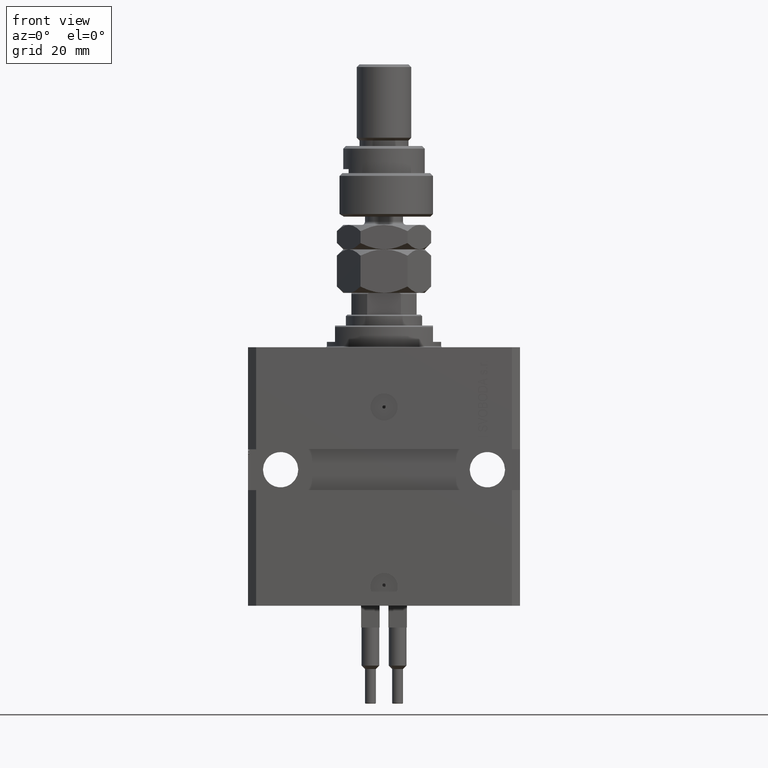
[diagram: clean part render]
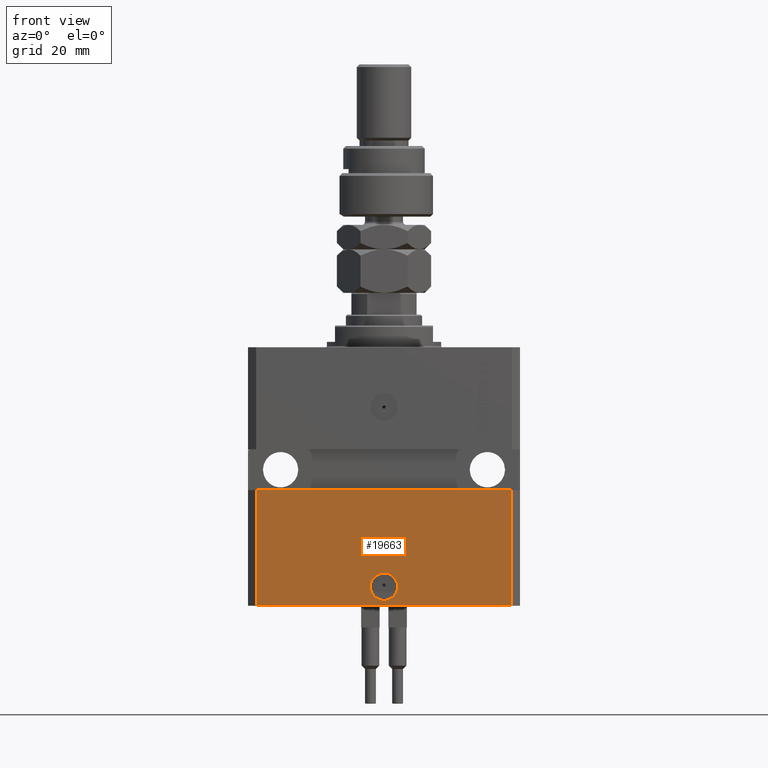
[diagram: same view with one face highlighted and labeled with its STEP entity id]
A machine part, front view. The second image highlights one B-rep face of the part: STEP entity #19663.
In plain terms, the highlighted planar face has unit normal (-0, -1, 0).
Its self-contained STEP definition (entity closure, byte-faithful):
#2255 = VERTEX_POINT ( 'NONE', #12855 ) ;
#3284 = CARTESIAN_POINT ( 'NONE',  ( -5.000000000000011546, -37.50000000000000000, -88.00000000000000000 ) ) ;
#3376 = FACE_OUTER_BOUND ( 'NONE', #18897, .T. ) ;
#3636 = LINE ( 'NONE', #24104, #7887 ) ;
#4402 = DIRECTION ( 'NONE',  ( 0.000000000000000000, 0.000000000000000000, 1.000000000000000000 ) ) ;
#5188 = VERTEX_POINT ( 'NONE', #21720 ) ;
#7012 = CARTESIAN_POINT ( 'NONE',  ( -47.00000000000000000, -37.49999999999999289, -95.00000000000000000 ) ) ;
#7148 = DIRECTION ( 'NONE',  ( 1.000000000000000000, 1.387778780781445676E-16, 0.000000000000000000 ) ) ;
#7887 = VECTOR ( 'NONE', #4402, 1000.000000000000000 ) ;
#8024 = DIRECTION ( 'NONE',  ( -1.476360405086644556E-16, -1.000000000000000000, 0.000000000000000000 ) ) ;
#8436 = ORIENTED_EDGE ( 'NONE', *, *, #13080, .T. ) ;
#8982 = DIRECTION ( 'NONE',  ( 1.000000000000000000, -1.476360405086644309E-16, 0.000000000000000000 ) ) ;
#9504 = LINE ( 'NONE', #10519, #17914 ) ;
#10468 = EDGE_CURVE ( 'NONE', #2255, #31849, #49683, .T. ) ;
#10519 = CARTESIAN_POINT ( 'NONE',  ( -47.00000000000000000, -37.49999999999999289, -95.00000000000000000 ) ) ;
#10586 = AXIS2_PLACEMENT_3D ( 'NONE', #7012, #8024, #15300 ) ;
#10685 = VERTEX_POINT ( 'NONE', #49167 ) ;
#11322 = CARTESIAN_POINT ( 'NONE',  ( -5.536351519074916863E-15, -37.50000000000000000, -88.00000000000000000 ) ) ;
#12855 = CARTESIAN_POINT ( 'NONE',  ( 5.000000000000000888, -37.50000000000000000, -88.00000000000000000 ) ) ;
#13080 = EDGE_CURVE ( 'NONE', #17063, #27251, #45561, .T. ) ;
#13256 = ORIENTED_EDGE ( 'NONE', *, *, #37547, .F. ) ;
#15300 = DIRECTION ( 'NONE',  ( 1.000000000000000000, -1.476360405086644556E-16, 0.000000000000000000 ) ) ;
#16300 = DIRECTION ( 'NONE',  ( 1.000000000000000000, 0.000000000000000000, 0.000000000000000000 ) ) ;
#17063 = VERTEX_POINT ( 'NONE', #22963 ) ;
#17137 = EDGE_CURVE ( 'NONE', #10685, #5188, #46060, .T. ) ;
#17784 = CARTESIAN_POINT ( 'NONE',  ( -47.00000000000000000, -37.49999999999999289, -95.00000000000000000 ) ) ;
#17914 = VECTOR ( 'NONE', #26338, 1000.000000000000000 ) ;
#18897 = EDGE_LOOP ( 'NONE', ( #38336, #25777, #8436, #44507 ) ) ;
#18933 = PLANE ( 'NONE',  #10586 ) ;
#19663 = ADVANCED_FACE ( 'NONE', ( #39652, #3376 ), #18933, .T. ) ;
#19681 = CARTESIAN_POINT ( 'NONE',  ( -5.536351519074916863E-15, -37.50000000000000000, -88.00000000000000000 ) ) ;
#20445 = DIRECTION ( 'NONE',  ( 1.176083712526788232E-16, -1.000000000000000000, 0.000000000000000000 ) ) ;
#21720 = CARTESIAN_POINT ( 'NONE',  ( 47.00000000000000000, -37.49999999999999289, -52.50000000000000000 ) ) ;
#22963 = CARTESIAN_POINT ( 'NONE',  ( -47.00000000000000000, -37.49999999999999289, -95.00000000000000000 ) ) ;
#24104 = CARTESIAN_POINT ( 'NONE',  ( 47.00000000000000000, -37.50000000000000711, -95.00000000000000000 ) ) ;
#25777 = ORIENTED_EDGE ( 'NONE', *, *, #38245, .F. ) ;
#26338 = DIRECTION ( 'NONE',  ( 0.000000000000000000, 0.000000000000000000, 1.000000000000000000 ) ) ;
#27251 = VERTEX_POINT ( 'NONE', #28428 ) ;
#28428 = CARTESIAN_POINT ( 'NONE',  ( 47.00000000000000000, -37.50000000000000711, -95.00000000000000000 ) ) ;
#28515 = CIRCLE ( 'NONE', #39291, 5.000000000000006217 ) ;
#31849 = VERTEX_POINT ( 'NONE', #3284 ) ;
#35454 = VECTOR ( 'NONE', #7148, 1000.000000000000000 ) ;
#37547 = EDGE_CURVE ( 'NONE', #31849, #2255, #28515, .T. ) ;
#38025 = DIRECTION ( 'NONE',  ( 1.000000000000000000, 0.000000000000000000, 0.000000000000000000 ) ) ;
#38245 = EDGE_CURVE ( 'NONE', #17063, #10685, #9504, .T. ) ;
#38336 = ORIENTED_EDGE ( 'NONE', *, *, #17137, .F. ) ;
#38539 = DIRECTION ( 'NONE',  ( 1.176083712526788232E-16, -1.000000000000000000, 0.000000000000000000 ) ) ;
#39291 = AXIS2_PLACEMENT_3D ( 'NONE', #19681, #20445, #16300 ) ;
#39652 = FACE_BOUND ( 'NONE', #42378, .T. ) ;
#42378 = EDGE_LOOP ( 'NONE', ( #51011, #13256 ) ) ;
#44066 = VECTOR ( 'NONE', #8982, 1000.000000000000000 ) ;
#44507 = ORIENTED_EDGE ( 'NONE', *, *, #49752, .T. ) ;
#45561 = LINE ( 'NONE', #17784, #44066 ) ;
#46060 = LINE ( 'NONE', #46580, #35454 ) ;
#46386 = AXIS2_PLACEMENT_3D ( 'NONE', #11322, #38539, #38025 ) ;
#46580 = CARTESIAN_POINT ( 'NONE',  ( -50.00000000000001421, -37.50000000000000711, -52.50000000000000000 ) ) ;
#49167 = CARTESIAN_POINT ( 'NONE',  ( -46.99999999999998579, -37.50000000000000711, -52.50000000000000000 ) ) ;
#49683 = CIRCLE ( 'NONE', #46386, 5.000000000000006217 ) ;
#49752 = EDGE_CURVE ( 'NONE', #27251, #5188, #3636, .T. ) ;
#51011 = ORIENTED_EDGE ( 'NONE', *, *, #10468, .F. ) ;